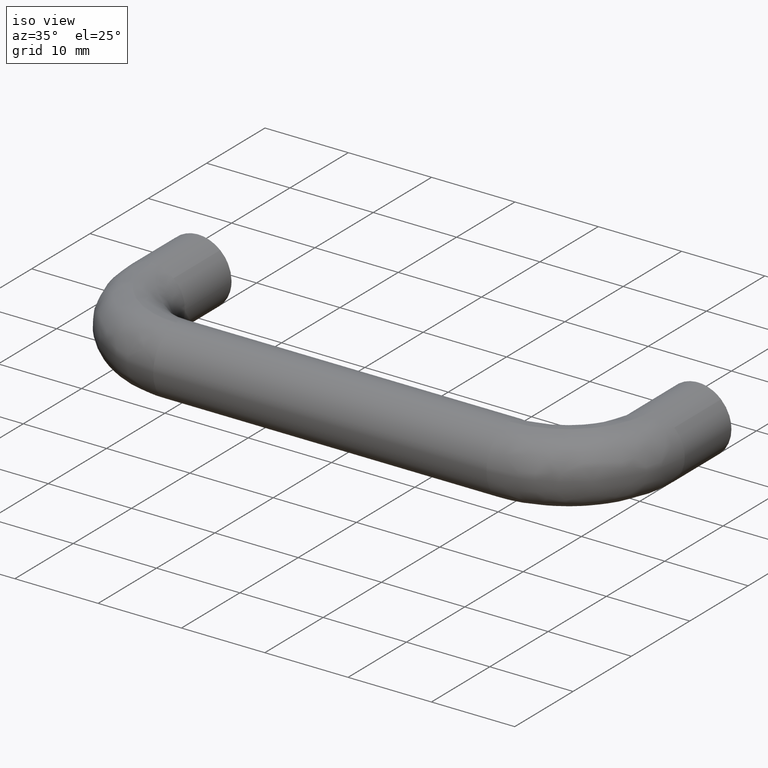
[diagram: clean part render]
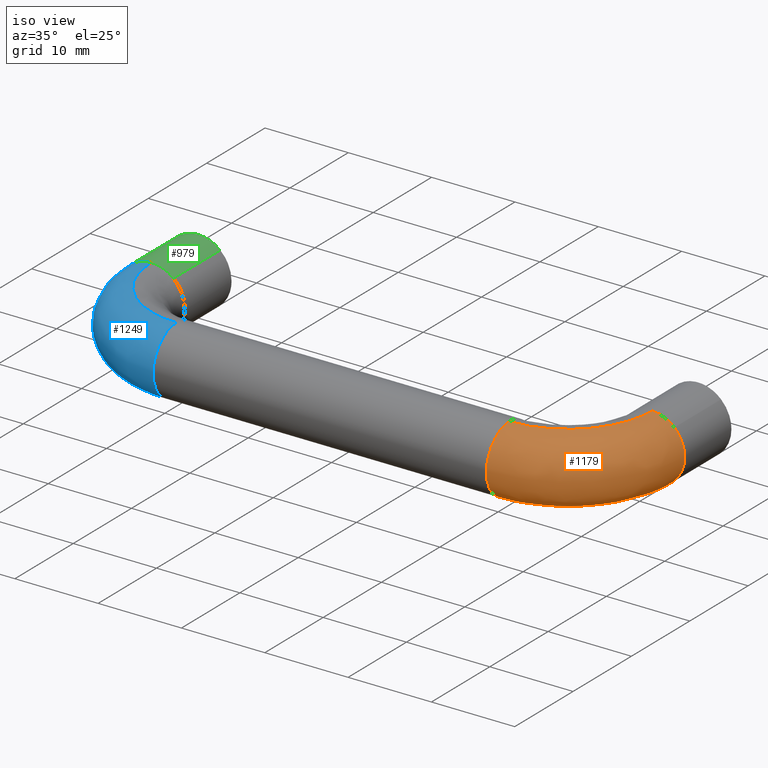
[diagram: same view with three faces highlighted in distinct colors, each labeled with its STEP entity id]
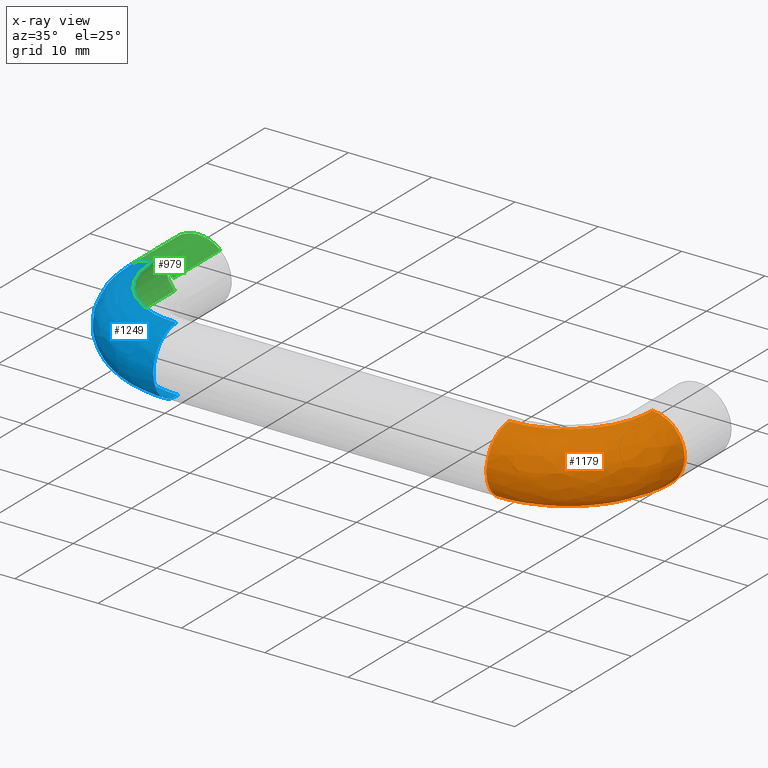
[diagram: x-ray of the same camera — body ghosted, the three highlighted faces saturated]
A machine part, iso view with three faces highlighted in distinct colors.
The next image is the same camera in x-ray (body ghosted, the three faces saturated) — at least one of them is partly hidden behind the body in this view.
Their STEP definitions:

[orange] entity #1179 — the highlighted face is a freeform B-spline surface patch.
#447=CARTESIAN_POINT('',(62.753417808765207,-8.000000001999243,2.901497951945548));
#448=VERTEX_POINT('',#447);
#454=CARTESIAN_POINT('',(64.0,-8.0,0.0));
#455=VERTEX_POINT('',#454);
#456=CARTESIAN_POINT('',(62.753417808765207,-8.000000001999243,2.901497951945548));
#457=CARTESIAN_POINT('',(64.0,-8.0,1.718536429025472));
#458=CARTESIAN_POINT('',(64.0,-8.0,0.0));
#466=(BOUNDED_CURVE()B_SPLINE_CURVE(2,(#456,#457,#458),.UNSPECIFIED.,.F.,.U.)B_SPLINE_CURVE_WITH_KNOTS((3,3),(0.871049475371173,1.0),.UNSPECIFIED.)CURVE()GEOMETRIC_REPRESENTATION_ITEM()RATIONAL_B_SPLINE_CURVE((0.853699665167448,0.848925063095118,1.0))REPRESENTATION_ITEM(''));
#467=EDGE_CURVE('',#448,#455,#466,.T.);
#469=CARTESIAN_POINT('',(59.899484552384273,-7.999991810552365,-3.998736881162301));
#470=VERTEX_POINT('',#469);
#471=CARTESIAN_POINT('',(64.0,-8.0,0.0));
#472=CARTESIAN_POINT('',(64.000000000000043,-7.999996006910996,-3.999999999998598));
#473=CARTESIAN_POINT('',(60.000000000000071,-7.999991912187178,-3.999999999997161));
#474=CARTESIAN_POINT('',(59.949734339754386,-7.999991860731179,-3.999999999997142));
#475=CARTESIAN_POINT('',(59.899484552384266,-7.999991810552365,-3.998736881162301));
#483=(BOUNDED_CURVE()B_SPLINE_CURVE(2,(#471,#472,#473,#474,#475),.UNSPECIFIED.,.F.,.U.)B_SPLINE_CURVE_WITH_KNOTS((3,2,3),(0.0,0.250000000000000,0.254419892319458),.UNSPECIFIED.)CURVE()GEOMETRIC_REPRESENTATION_ITEM()RATIONAL_B_SPLINE_CURVE((1.0,0.707106781186548,1.0,0.994821774046980,0.989826645702906))REPRESENTATION_ITEM(''));
#484=EDGE_CURVE('',#455,#470,#483,.T.);
#586=CARTESIAN_POINT('',(60.100520387876692,-8.000000006253728,3.998736756979773));
#587=VERTEX_POINT('',#586);
#603=CARTESIAN_POINT('',(60.100520387876685,-8.000000006253728,3.998736756979774));
#604=CARTESIAN_POINT('',(61.637893561696416,-8.000000003788189,3.960090212702295));
#605=CARTESIAN_POINT('',(62.753417808765207,-8.000000001999243,2.901497951945548));
#613=(BOUNDED_CURVE()B_SPLINE_CURVE(2,(#603,#604,#605),.UNSPECIFIED.,.F.,.U.)B_SPLINE_CURVE_WITH_KNOTS((3,3),(0.754420108764336,0.871049475371174),.UNSPECIFIED.)CURVE()GEOMETRIC_REPRESENTATION_ITEM()RATIONAL_B_SPLINE_CURVE((0.989826156474256,0.858018056403918,0.853699665167448))REPRESENTATION_ITEM(''));
#614=EDGE_CURVE('',#587,#448,#613,.T.);
#728=CARTESIAN_POINT('',(50.000000000000007,-20.901498082715289,-2.753417671912254));
#729=VERTEX_POINT('',#728);
#735=CARTESIAN_POINT('',(50.0,-22.0,0.0));
#736=VERTEX_POINT('',#735);
#737=CARTESIAN_POINT('',(50.0,-22.0,0.0));
#738=CARTESIAN_POINT('',(49.999999999999986,-22.0,-1.595837175758675));
#739=CARTESIAN_POINT('',(50.000000000000007,-20.901498082715289,-2.753417671912254));
#747=(BOUNDED_CURVE()B_SPLINE_CURVE(2,(#737,#738,#739),.UNSPECIFIED.,.F.,.U.)B_SPLINE_CURVE_WITH_KNOTS((3,3),(0.0,0.121049461033561),.UNSPECIFIED.)CURVE()GEOMETRIC_REPRESENTATION_ITEM()RATIONAL_B_SPLINE_CURVE((1.0,0.858181734888987,0.853699666229196))REPRESENTATION_ITEM(''));
#748=EDGE_CURVE('',#736,#729,#747,.T.);
#750=CARTESIAN_POINT('',(50.000000000706883,-18.100520384777500,3.998736757057681));
#751=VERTEX_POINT('',#750);
#752=CARTESIAN_POINT('',(50.000000000706876,-18.100520384777496,3.998736757057681));
#753=CARTESIAN_POINT('',(49.999999999999993,-21.999999999999996,3.900711498859729));
#754=CARTESIAN_POINT('',(50.0,-22.0,0.0));
#762=(BOUNDED_CURVE()B_SPLINE_CURVE(2,(#752,#753,#754),.UNSPECIFIED.,.F.,.U.)B_SPLINE_CURVE_WITH_KNOTS((3,3),(0.754420108493106,1.0),.UNSPECIFIED.)CURVE()GEOMETRIC_REPRESENTATION_ITEM()RATIONAL_B_SPLINE_CURVE((0.989826157087315,0.712285260402750,1.0))REPRESENTATION_ITEM(''));
#763=EDGE_CURVE('',#751,#736,#762,.T.);
#801=CARTESIAN_POINT('',(50.000000000186787,-17.899479618020539,-3.998736757128018));
#802=VERTEX_POINT('',#801);
#816=CARTESIAN_POINT('',(50.000000000000007,-20.901498082715289,-2.753417671912254));
#817=CARTESIAN_POINT('',(50.0,-19.718536654108682,-4.000000000000001));
#818=CARTESIAN_POINT('',(50.0,-18.0,-4.0));
#819=CARTESIAN_POINT('',(50.0,-17.949731871300280,-4.0));
#820=CARTESIAN_POINT('',(50.000000000186787,-17.899479618020539,-3.998736757128018));
#828=(BOUNDED_CURVE()B_SPLINE_CURVE(2,(#816,#817,#818,#819,#820),.UNSPECIFIED.,.F.,.U.)B_SPLINE_CURVE_WITH_KNOTS((3,2,3),(0.121049461033561,0.250000000000000,0.254420108248230),.UNSPECIFIED.)CURVE()GEOMETRIC_REPRESENTATION_ITEM()RATIONAL_B_SPLINE_CURVE((0.853699666229196,0.848925046297560,1.0,0.994821521070688,0.989826157640806))REPRESENTATION_ITEM(''));
#829=EDGE_CURVE('',#729,#802,#828,.T.);
#1108=CARTESIAN_POINT('',(50.000000000186787,-17.899479618020539,-3.998736757128019));
#1109=CARTESIAN_POINT('',(59.899490274660700,-17.899479617747975,-3.998736819145160));
#1110=CARTESIAN_POINT('',(59.899484552384266,-7.999991810552365,-3.998736881162300));
#1118=(BOUNDED_CURVE()B_SPLINE_CURVE(2,(#1108,#1109,#1110),.UNSPECIFIED.,.F.,.U.)B_SPLINE_CURVE_WITH_KNOTS((3,3),(-1.733067862694350,-0.253786818865084),.UNSPECIFIED.)CURVE()GEOMETRIC_REPRESENTATION_ITEM()RATIONAL_B_SPLINE_CURVE((0.889551170312059,0.630646694483035,0.894193826133788))REPRESENTATION_ITEM(''));
#1119=EDGE_CURVE('',#802,#470,#1118,.T.);
#1124=CARTESIAN_POINT('',(50.000000000706876,-18.100520384777496,3.998736757057681));
#1125=CARTESIAN_POINT('',(60.100520369265880,-18.100520380359587,3.998736757133198));
#1126=CARTESIAN_POINT('',(60.100520387876678,-8.000000006253728,3.998736756979774));
#1134=(BOUNDED_CURVE()B_SPLINE_CURVE(2,(#1124,#1125,#1126),.UNSPECIFIED.,.F.,.U.)B_SPLINE_CURVE_WITH_KNOTS((3,3),(-1.733067862587692,-0.253787687740336),.UNSPECIFIED.)CURVE()GEOMETRIC_REPRESENTATION_ITEM()RATIONAL_B_SPLINE_CURVE((0.889551170274724,0.630646846572999,0.894193516538193))REPRESENTATION_ITEM(''));
#1135=EDGE_CURVE('',#751,#587,#1134,.T.);
#1140=CARTESIAN_POINT('',(49.313746009331091,-17.818444263339330,-3.997301829668271));
#1141=CARTESIAN_POINT('',(60.603575772255859,-18.607539818702264,-3.997301829668273));
#1142=CARTESIAN_POINT('',(59.818700079104012,-7.317415903633189,-3.997301829668271));
#1143=CARTESIAN_POINT('',(49.311761912228832,-17.846831343161732,-3.998017165967396));
#1144=CARTESIAN_POINT('',(60.634232823798513,-18.638208331093502,-3.998017165967394));
#1145=CARTESIAN_POINT('',(59.847087898540792,-7.315442416927009,-3.998017165967394));
#1146=CARTESIAN_POINT('',(49.030957013627933,-21.864392309325492,-4.099257138906547));
#1147=CARTESIAN_POINT('',(64.973057894430013,-22.978655430413465,-4.099257138906548));
#1148=CARTESIAN_POINT('',(63.864753540700370,-7.036139184343932,-4.099257138906546));
#1149=CARTESIAN_POINT('',(49.023948303422671,-21.964668054813213,-0.100520381773350));
#1150=CARTESIAN_POINT('',(65.081352185957300,-23.086990206736708,-0.100520381773350));
#1151=CARTESIAN_POINT('',(63.965031898833821,-7.029167954759546,-0.100520381773350));
#1152=CARTESIAN_POINT('',(49.016939593217423,-22.064943800300938,3.898216375359850));
#1153=CARTESIAN_POINT('',(65.189646477484587,-23.195324983059944,3.898216375359849));
#1154=CARTESIAN_POINT('',(64.065310256967294,-7.022196725175158,3.898216375359849));
#1155=CARTESIAN_POINT('',(49.297778690148803,-18.046893548236412,3.999468677991512));
#1156=CARTESIAN_POINT('',(60.850292995224514,-18.854349274569731,3.999468677991511));
#1157=CARTESIAN_POINT('',(60.047155316158786,-7.301533973205642,3.999468677991511));
#1158=CARTESIAN_POINT('',(49.299796578313050,-18.018023009427818,4.000196197148616));
#1159=CARTESIAN_POINT('',(60.819113824916883,-18.823158448224365,4.000196197148616));
#1160=CARTESIAN_POINT('',(60.018284025139494,-7.303541070268653,4.000196197148616));
#1168=(BOUNDED_SURFACE()B_SPLINE_SURFACE(2,2,((#1140,#1143,#1146,#1149,#1152,#1155,#1158),(#1141,#1144,#1147,#1150,#1153,#1156,#1159),(#1142,#1145,#1148,#1151,#1154,#1157,#1160)),.UNSPECIFIED.,.F.,.F.,.U.)B_SPLINE_SURFACE_WITH_KNOTS((3,3),(3,1,2,1,3),(0.0,25.510897950889721),(0.0,0.067294671557552,6.694711669527080,13.322128667496610,13.390579874429029),.UNSPECIFIED.)GEOMETRIC_REPRESENTATION_ITEM()RATIONAL_B_SPLINE_SURFACE(((0.922171953786466,0.919445601029169,0.648218396897274,0.916719248271871,0.648218396897274,0.919492456498334,0.922265664724798),(0.606834870420412,0.605040795123065,0.426559846317306,0.603246719825717,0.426559846317306,0.605071628345050,0.606896536864383),(0.927308776363626,0.924567236861232,0.651829201674453,0.921825697358838,0.651829201674453,0.924614353331864,0.927403009304890)))REPRESENTATION_ITEM('')SURFACE());
#1169=ORIENTED_EDGE('',*,*,#467,.F.);
#1170=ORIENTED_EDGE('',*,*,#614,.F.);
#1171=ORIENTED_EDGE('',*,*,#1135,.F.);
#1172=ORIENTED_EDGE('',*,*,#763,.T.);
#1173=ORIENTED_EDGE('',*,*,#748,.T.);
#1174=ORIENTED_EDGE('',*,*,#829,.T.);
#1175=ORIENTED_EDGE('',*,*,#1119,.T.);
#1176=ORIENTED_EDGE('',*,*,#484,.F.);
#1177=EDGE_LOOP('',(#1169,#1170,#1171,#1172,#1173,#1174,#1175,#1176));
#1178=FACE_OUTER_BOUND('',#1177,.T.);
#1179=ADVANCED_FACE('',(#1178),#1168,.T.);

[blue] entity #1249 — the highlighted face is a freeform B-spline surface patch.
#681=CARTESIAN_POINT('',(9.999999999977183,-18.050264159744199,3.999684176812615));
#682=VERTEX_POINT('',#681);
#698=CARTESIAN_POINT('',(10.0,-22.0,0.0));
#699=VERTEX_POINT('',#698);
#700=CARTESIAN_POINT('',(9.999999999977183,-18.050264159744192,3.999684176812615));
#701=CARTESIAN_POINT('',(10.0,-22.0,3.950047719212881));
#702=CARTESIAN_POINT('',(10.0,-22.0,0.0));
#710=(BOUNDED_CURVE()B_SPLINE_CURVE(2,(#700,#701,#702),.UNSPECIFIED.,.F.,.U.)B_SPLINE_CURVE_WITH_KNOTS((3,3),(0.752215704096809,1.0),.UNSPECIFIED.)CURVE()GEOMETRIC_REPRESENTATION_ITEM()RATIONAL_B_SPLINE_CURVE((0.994854295601348,0.709702640005957,1.0))REPRESENTATION_ITEM(''));
#711=EDGE_CURVE('',#682,#699,#710,.T.);
#713=CARTESIAN_POINT('',(10.0,-20.901498075328391,-2.753417679696430));
#714=VERTEX_POINT('',#713);
#715=CARTESIAN_POINT('',(10.0,-22.0,0.0));
#716=CARTESIAN_POINT('',(10.000000000000002,-22.0,-1.595837188198000));
#717=CARTESIAN_POINT('',(10.0,-20.901498075328391,-2.753417679696430));
#725=(BOUNDED_CURVE()B_SPLINE_CURVE(2,(#715,#716,#717),.UNSPECIFIED.,.F.,.U.)B_SPLINE_CURVE_WITH_KNOTS((3,3),(0.0,0.121049461843310),.UNSPECIFIED.)CURVE()GEOMETRIC_REPRESENTATION_ITEM()RATIONAL_B_SPLINE_CURVE((1.0,0.858181733940307,0.853699666169231))REPRESENTATION_ITEM(''));
#726=EDGE_CURVE('',#699,#714,#725,.T.);
#832=CARTESIAN_POINT('',(9.999999999754682,-17.721066993419509,-3.990262695342246));
#833=VERTEX_POINT('',#832);
#834=CARTESIAN_POINT('',(10.0,-20.901498075328398,-2.753417679696430));
#835=CARTESIAN_POINT('',(10.0,-19.718536641396604,-4.000000000000001));
#836=CARTESIAN_POINT('',(10.0,-18.0,-4.0));
#837=CARTESIAN_POINT('',(10.0,-17.860363536221410,-4.000000000000000));
#838=CARTESIAN_POINT('',(9.999999999754682,-17.721066993419505,-3.990262695342246));
#846=(BOUNDED_CURVE()B_SPLINE_CURVE(2,(#834,#835,#836,#837,#838),.UNSPECIFIED.,.F.,.U.)B_SPLINE_CURVE_WITH_KNOTS((3,2,3),(0.121049461843310,0.250000000000000,0.262166313488892),.UNSPECIFIED.)CURVE()GEOMETRIC_REPRESENTATION_ITEM()RATIONAL_B_SPLINE_CURVE((0.853699666169232,0.848925047246240,1.0,0.985746277124580,0.972879876336249))REPRESENTATION_ITEM(''));
#847=EDGE_CURVE('',#714,#833,#846,.T.);
#886=CARTESIAN_POINT('',(-0.050264161491411,-8.000000000482695,3.999684176790658));
#887=VERTEX_POINT('',#886);
#942=CARTESIAN_POINT('',(-2.803636855499414,-7.999996549036103,-2.853001994825821));
#943=VERTEX_POINT('',#942);
#949=CARTESIAN_POINT('',(-3.999999999999999,-8.0,0.0));
#950=VERTEX_POINT('',#949);
#951=CARTESIAN_POINT('',(-3.999999999999999,-8.0,0.0));
#952=CARTESIAN_POINT('',(-4.000000000000053,-7.999998600445676,-1.677339539548950));
#953=CARTESIAN_POINT('',(-2.803636855499414,-7.999996549036104,-2.853001994825821));
#961=(BOUNDED_CURVE()B_SPLINE_CURVE(2,(#951,#952,#953),.UNSPECIFIED.,.F.,.U.)B_SPLINE_CURVE_WITH_KNOTS((3,3),(0.0,0.126316778926350),.UNSPECIFIED.)CURVE()GEOMETRIC_REPRESENTATION_ITEM()RATIONAL_B_SPLINE_CURVE((1.0,0.852010688120457,0.853569641778120))REPRESENTATION_ITEM(''));
#962=EDGE_CURVE('',#950,#943,#961,.T.);
#964=CARTESIAN_POINT('',(-0.050264161491411,-8.000000000482695,3.999684176790658));
#965=CARTESIAN_POINT('',(-4.0,-8.0,3.950047715761540));
#966=CARTESIAN_POINT('',(-3.999999999999999,-8.0,0.0));
#974=(BOUNDED_CURVE()B_SPLINE_CURVE(2,(#964,#965,#966),.UNSPECIFIED.,.F.,.U.)B_SPLINE_CURVE_WITH_KNOTS((3,3),(0.752215704250460,1.0),.UNSPECIFIED.)CURVE()GEOMETRIC_REPRESENTATION_ITEM()RATIONAL_B_SPLINE_CURVE((0.994854295247703,0.709702640185971,1.0))REPRESENTATION_ITEM(''));
#975=EDGE_CURVE('',#887,#950,#974,.T.);
#1017=CARTESIAN_POINT('',(0.278927085149124,-7.999992841993045,-3.990263109262084));
#1018=VERTEX_POINT('',#1017);
#1032=CARTESIAN_POINT('',(-2.803636855499414,-7.999996549036104,-2.853001994825821));
#1033=CARTESIAN_POINT('',(-1.636442875590120,-7.999994547647625,-3.999999999996933));
#1034=CARTESIAN_POINT('',(-2.710222E-013,-7.999993083438938,-3.999999999996109));
#1035=CARTESIAN_POINT('',(0.139633492081325,-7.999992958501750,-3.999999999996039));
#1036=CARTESIAN_POINT('',(0.278927085149124,-7.999992841993045,-3.990263109262085));
#1044=(BOUNDED_CURVE()B_SPLINE_CURVE(2,(#1032,#1033,#1034,#1035,#1036),.UNSPECIFIED.,.F.,.U.)B_SPLINE_CURVE_WITH_KNOTS((3,2,3),(0.126316778926350,0.250000000000000,0.262166058259925),.UNSPECIFIED.)CURVE()GEOMETRIC_REPRESENTATION_ITEM()RATIONAL_B_SPLINE_CURVE((0.853569641778120,0.855096093066091,1.0,0.985746576143914,0.972880416168121))REPRESENTATION_ITEM(''));
#1045=EDGE_CURVE('',#943,#1018,#1044,.T.);
#1180=CARTESIAN_POINT('',(0.362759058552336,-7.328220084217699,-3.986037690130090));
#1181=CARTESIAN_POINT('',(-0.409692905576315,-18.409685187760218,-3.986037690130087));
#1182=CARTESIAN_POINT('',(10.671772770664438,-17.637241439507328,-3.986037690130088));
#1183=CARTESIAN_POINT('',(0.332525016635582,-7.326112570017734,-3.988156279814388));
#1184=CARTESIAN_POINT('',(-0.442350290979450,-18.442342548950961,-3.988156279814386));
#1185=CARTESIAN_POINT('',(10.673880262448675,-17.667475482986603,-3.988156279814387));
#1186=CARTESIAN_POINT('',(0.188541437608098,-7.316075955059079,-3.998245639552520));
#1187=CARTESIAN_POINT('',(-0.597874558788898,-18.597866701453658,-3.998245639552521));
#1188=CARTESIAN_POINT('',(10.683916770656896,-17.811459069455264,-3.998245639552520));
#1189=CARTESIAN_POINT('',(0.074349399755585,-7.308116009049880,-3.999684176815263));
#1190=CARTESIAN_POINT('',(-0.721219409615885,-18.721211460831963,-3.999684176815263));
#1191=CARTESIAN_POINT('',(10.691876632003321,-17.925651113209302,-3.999684176815263));
#1192=CARTESIAN_POINT('',(-3.915652775873313,-7.029986268203891,-4.049948336348672));
#1193=CARTESIAN_POINT('',(-5.031031480646149,-23.031020336538660,-4.049948336348671));
#1194=CARTESIAN_POINT('',(10.970003414633782,-21.915653495044438,-4.049948336348672));
#1195=CARTESIAN_POINT('',(-3.965795261386791,-7.026491002816214,-0.050264159533408));
#1196=CARTESIAN_POINT('',(-5.085193027388509,-23.085181843125294,-0.050264159533408));
#1197=CARTESIAN_POINT('',(10.973498642845470,-21.965795983149324,-0.050264159533408));
#1198=CARTESIAN_POINT('',(-4.015937746900272,-7.022995737428533,3.949420017281855));
#1199=CARTESIAN_POINT('',(-5.139354574130874,-23.139343349711918,3.949420017281855));
#1200=CARTESIAN_POINT('',(10.976993871057159,-22.015938471254195,3.949420017281855));
#1201=CARTESIAN_POINT('',(0.003379571743219,-7.303168939097503,4.000053475116461));
#1202=CARTESIAN_POINT('',(-0.797877668930852,-18.797869663311985,4.000053475116459));
#1203=CARTESIAN_POINT('',(10.696823649338167,-17.996620944889447,4.000053475116459));
#1204=CARTESIAN_POINT('',(0.032516827215180,-7.305199999973329,4.000420532474561));
#1205=CARTESIAN_POINT('',(-0.766404980490537,-18.766396998205721,4.000420532474562));
#1206=CARTESIAN_POINT('',(10.694792610064908,-17.967483687911653,4.000420532474561));
#1214=(BOUNDED_SURFACE()B_SPLINE_SURFACE(2,2,((#1180,#1183,#1186,#1189,#1192,#1195,#1198,#1201,#1204),(#1181,#1184,#1187,#1190,#1193,#1196,#1199,#1202,#1205),(#1182,#1185,#1188,#1191,#1194,#1197,#1200,#1203,#1206)),.UNSPECIFIED.,.F.,.F.,.U.)B_SPLINE_SURFACE_WITH_KNOTS((3,3),(3,1,2,2,1,3),(0.0,25.512674355220089),(0.0,0.068988752659974,0.334085179762860,6.961502177732383,13.588919175701911,13.657991151437541),.UNSPECIFIED.)GEOMETRIC_REPRESENTATION_ITEM()RATIONAL_B_SPLINE_SURFACE(((0.896248106684243,0.898834768799030,0.911360947984552,0.922164769991582,0.652068962232381,0.922164769991582,0.652068962232381,0.924979750712662,0.927794731433741),(0.588139987186060,0.589837418301060,0.598057404274496,0.605147137228335,0.427903644349782,0.605147137228335,0.427903644349782,0.606994396612067,0.608841655995799),(0.896247803949265,0.898834465190328,0.911360640144753,0.922164458502465,0.652068741976314,0.922164458502465,0.652068741976314,0.924979438272700,0.927794418042934)))REPRESENTATION_ITEM('')SURFACE());
#1215=ORIENTED_EDGE('',*,*,#847,.F.);
#1216=ORIENTED_EDGE('',*,*,#726,.F.);
#1217=ORIENTED_EDGE('',*,*,#711,.F.);
#1218=CARTESIAN_POINT('',(-0.050264161491411,-8.000000000482695,3.999684176790658));
#1219=CARTESIAN_POINT('',(-0.050264158568014,-18.050264159487760,3.999684176815263));
#1220=CARTESIAN_POINT('',(9.999999999977183,-18.050264159744199,3.999684176812615));
#1228=(BOUNDED_CURVE()B_SPLINE_CURVE(2,(#1218,#1219,#1220),.UNSPECIFIED.,.F.,.U.)B_SPLINE_CURVE_WITH_KNOTS((3,3),(-1.744561813214446,-0.255438186689191),.UNSPECIFIED.)CURVE()GEOMETRIC_REPRESENTATION_ITEM()RATIONAL_B_SPLINE_CURVE((0.894678510006817,0.632633241451508,0.894678510040732))REPRESENTATION_ITEM(''));
#1229=EDGE_CURVE('',#887,#682,#1228,.T.);
#1230=ORIENTED_EDGE('',*,*,#1229,.F.);
#1231=ORIENTED_EDGE('',*,*,#975,.T.);
#1232=ORIENTED_EDGE('',*,*,#962,.T.);
#1233=ORIENTED_EDGE('',*,*,#1045,.T.);
#1234=CARTESIAN_POINT('',(0.278927085149124,-7.999992841993045,-3.990263109262084));
#1235=CARTESIAN_POINT('',(0.278922887841558,-17.721066993066049,-3.990262902302166));
#1236=CARTESIAN_POINT('',(9.999999999754682,-17.721066993419505,-3.990262695342245));
#1244=(BOUNDED_CURVE()B_SPLINE_CURVE(2,(#1234,#1235,#1236),.UNSPECIFIED.,.F.,.U.)B_SPLINE_CURVE_WITH_KNOTS((3,3),(-1.744562588658354,-0.255438186737555),.UNSPECIFIED.)CURVE()GEOMETRIC_REPRESENTATION_ITEM()RATIONAL_B_SPLINE_CURVE((0.874553700153646,0.618402529915441,0.874553433394918))REPRESENTATION_ITEM(''));
#1245=EDGE_CURVE('',#1018,#833,#1244,.T.);
#1246=ORIENTED_EDGE('',*,*,#1245,.T.);
#1247=EDGE_LOOP('',(#1215,#1216,#1217,#1230,#1231,#1232,#1233,#1246));
#1248=FACE_OUTER_BOUND('',#1247,.T.);
#1249=ADVANCED_FACE('',(#1248),#1214,.T.);

[green] entity #979 — the highlighted face is a freeform B-spline surface patch.
#866=CARTESIAN_POINT('',(2.635878288639743,0.200000000012068,3.008678388840790));
#867=CARTESIAN_POINT('',(-0.205377497417183,0.200000000012068,5.497879117877503));
#868=CARTESIAN_POINT('',(-2.853001796616727,0.200000000012068,2.803637057199401));
#869=CARTESIAN_POINT('',(-5.656638853816128,0.200000000012067,-0.049364739417326));
#870=CARTESIAN_POINT('',(-2.803637057199401,0.200000000012068,-2.853001796616727));
#871=CARTESIAN_POINT('',(2.635878288639744,-8.205000000495065,3.008678388840790));
#872=CARTESIAN_POINT('',(-0.205377497417182,-8.205000000495064,5.497879117877503));
#873=CARTESIAN_POINT('',(-2.853001796616726,-8.205000000495065,2.803637057199401));
#874=CARTESIAN_POINT('',(-5.656638853816128,-8.205000000495065,-0.049364739417326));
#875=CARTESIAN_POINT('',(-2.803637057199400,-8.205000000495065,-2.853001796616727));
#883=(BOUNDED_SURFACE()B_SPLINE_SURFACE(2,1,((#866,#871),(#867,#872),(#868,#873),(#869,#874),(#870,#875)),.UNSPECIFIED.,.F.,.F.,.U.)B_SPLINE_SURFACE_WITH_KNOTS((3,2,3),(2,2),(0.0,6.362320318050738,12.989737316020260),(0.0,8.405000000507135),.UNSPECIFIED.)GEOMETRIC_REPRESENTATION_ITEM()RATIONAL_B_SPLINE_SURFACE(((0.977505800795127,0.977505800795127),(0.718822509939086,0.718822509939086),(1.0,1.0),(0.707106781186548,0.707106781186548),(1.0,1.0)))REPRESENTATION_ITEM('')SURFACE());
#884=CARTESIAN_POINT('',(2.635878256833538,-8.0,3.008678416705945));
#885=VERTEX_POINT('',#884);
#886=CARTESIAN_POINT('',(-0.050264161491411,-8.000000000482695,3.999684176790658));
#887=VERTEX_POINT('',#886);
#888=CARTESIAN_POINT('',(2.635878256833538,-8.0,3.008678416705945));
#889=CARTESIAN_POINT('',(1.504351067536320,-8.0,4.000000000000000));
#890=CARTESIAN_POINT('',(9.796851E-016,-8.0,4.0));
#891=CARTESIAN_POINT('',(-0.025133073925801,-8.0,4.000000000000001));
#892=CARTESIAN_POINT('',(-0.050264161491411,-8.000000000482695,3.999684176790658));
#900=(BOUNDED_CURVE()B_SPLINE_CURVE(2,(#888,#889,#890,#891,#892),.UNSPECIFIED.,.F.,.U.)B_SPLINE_CURVE_WITH_KNOTS((3,2,3),(0.634954723269971,0.750000000000000,0.752215704250460),.UNSPECIFIED.)CURVE()GEOMETRIC_REPRESENTATION_ITEM()RATIONAL_B_SPLINE_CURVE((0.854482180908901,0.865216074357030,1.0,0.997404141000576,0.994854295247701))REPRESENTATION_ITEM(''));
#901=EDGE_CURVE('',#885,#887,#900,.T.);
#902=ORIENTED_EDGE('',*,*,#901,.F.);
#903=CARTESIAN_POINT('',(2.635878257225859,1.987600E-016,3.008678416362234));
#904=VERTEX_POINT('',#903);
#905=CARTESIAN_POINT('',(2.635878257225859,1.987600E-016,3.008678416362234));
#906=CARTESIAN_POINT('',(2.635878256833538,-8.0,3.008678416705945));
#907=QUASI_UNIFORM_CURVE('',1,(#905,#906),.UNSPECIFIED.,.F.,.U.);
#908=EDGE_CURVE('',#904,#885,#907,.T.);
#909=ORIENTED_EDGE('',*,*,#908,.F.);
#910=CARTESIAN_POINT('',(-4.0,0.0,0.0));
#911=VERTEX_POINT('',#910);
#912=CARTESIAN_POINT('',(2.635878257225860,1.987600E-016,3.008678416362234));
#913=CARTESIAN_POINT('',(1.504351068131682,0.0,4.000000000000001));
#914=CARTESIAN_POINT('',(0.0,0.0,4.0));
#915=CARTESIAN_POINT('',(-4.000000000000000,0.0,4.000000000000000));
#916=CARTESIAN_POINT('',(-4.0,0.0,0.0));
#924=(BOUNDED_CURVE()B_SPLINE_CURVE(2,(#912,#913,#914,#915,#916),.UNSPECIFIED.,.F.,.U.)B_SPLINE_CURVE_WITH_KNOTS((3,2,3),(0.634954723230578,0.750000000000000,1.0),.UNSPECIFIED.)CURVE()GEOMETRIC_REPRESENTATION_ITEM()RATIONAL_B_SPLINE_CURVE((0.854482180901550,0.865216074310877,1.0,0.707106781186548,1.0))REPRESENTATION_ITEM(''));
#925=EDGE_CURVE('',#904,#911,#924,.T.);
#926=ORIENTED_EDGE('',*,*,#925,.T.);
#927=CARTESIAN_POINT('',(-2.803636857988532,-1.249001E-016,-2.853001992380676));
#928=VERTEX_POINT('',#927);
#929=CARTESIAN_POINT('',(-4.0,0.0,0.0));
#930=CARTESIAN_POINT('',(-4.0,0.0,-1.677339535446148));
#931=CARTESIAN_POINT('',(-2.803636857988533,-1.249001E-016,-2.853001992380677));
#939=(BOUNDED_CURVE()B_SPLINE_CURVE(2,(#929,#930,#931),.UNSPECIFIED.,.F.,.U.)B_SPLINE_CURVE_WITH_KNOTS((3,3),(0.0,0.126316778663051),.UNSPECIFIED.)CURVE()GEOMETRIC_REPRESENTATION_ITEM()RATIONAL_B_SPLINE_CURVE((1.0,0.852010688428930,0.853569641771621))REPRESENTATION_ITEM(''));
#940=EDGE_CURVE('',#911,#928,#939,.T.);
#941=ORIENTED_EDGE('',*,*,#940,.T.);
#942=CARTESIAN_POINT('',(-2.803636855499414,-7.999996549036103,-2.853001994825821));
#943=VERTEX_POINT('',#942);
#944=CARTESIAN_POINT('',(-2.803636857988532,-1.249001E-016,-2.853001992380676));
#945=CARTESIAN_POINT('',(-2.803636855499414,-7.999996549036103,-2.853001994825821));
#946=QUASI_UNIFORM_CURVE('',1,(#944,#945),.UNSPECIFIED.,.F.,.U.);
#947=EDGE_CURVE('',#928,#943,#946,.T.);
#948=ORIENTED_EDGE('',*,*,#947,.T.);
#949=CARTESIAN_POINT('',(-3.999999999999999,-8.0,0.0));
#950=VERTEX_POINT('',#949);
#951=CARTESIAN_POINT('',(-3.999999999999999,-8.0,0.0));
#952=CARTESIAN_POINT('',(-4.000000000000053,-7.999998600445676,-1.677339539548950));
#953=CARTESIAN_POINT('',(-2.803636855499414,-7.999996549036104,-2.853001994825821));
#961=(BOUNDED_CURVE()B_SPLINE_CURVE(2,(#951,#952,#953),.UNSPECIFIED.,.F.,.U.)B_SPLINE_CURVE_WITH_KNOTS((3,3),(0.0,0.126316778926350),.UNSPECIFIED.)CURVE()GEOMETRIC_REPRESENTATION_ITEM()RATIONAL_B_SPLINE_CURVE((1.0,0.852010688120457,0.853569641778120))REPRESENTATION_ITEM(''));
#962=EDGE_CURVE('',#950,#943,#961,.T.);
#963=ORIENTED_EDGE('',*,*,#962,.F.);
#964=CARTESIAN_POINT('',(-0.050264161491411,-8.000000000482695,3.999684176790658));
#965=CARTESIAN_POINT('',(-4.0,-8.0,3.950047715761540));
#966=CARTESIAN_POINT('',(-3.999999999999999,-8.0,0.0));
#974=(BOUNDED_CURVE()B_SPLINE_CURVE(2,(#964,#965,#966),.UNSPECIFIED.,.F.,.U.)B_SPLINE_CURVE_WITH_KNOTS((3,3),(0.752215704250460,1.0),.UNSPECIFIED.)CURVE()GEOMETRIC_REPRESENTATION_ITEM()RATIONAL_B_SPLINE_CURVE((0.994854295247703,0.709702640185971,1.0))REPRESENTATION_ITEM(''));
#975=EDGE_CURVE('',#887,#950,#974,.T.);
#976=ORIENTED_EDGE('',*,*,#975,.F.);
#977=EDGE_LOOP('',(#902,#909,#926,#941,#948,#963,#976));
#978=FACE_OUTER_BOUND('',#977,.T.);
#979=ADVANCED_FACE('',(#978),#883,.T.);